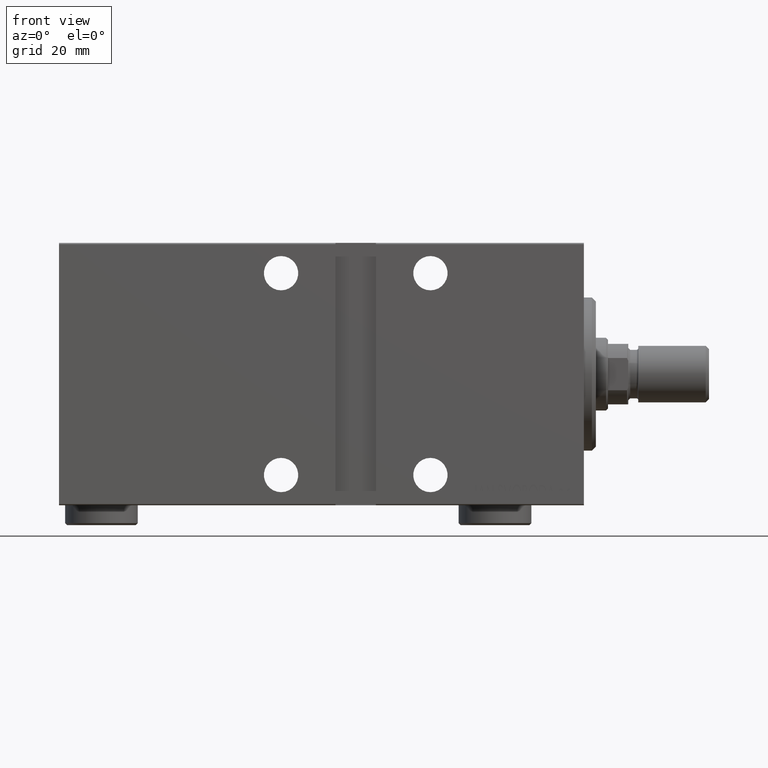
[diagram: clean part render]
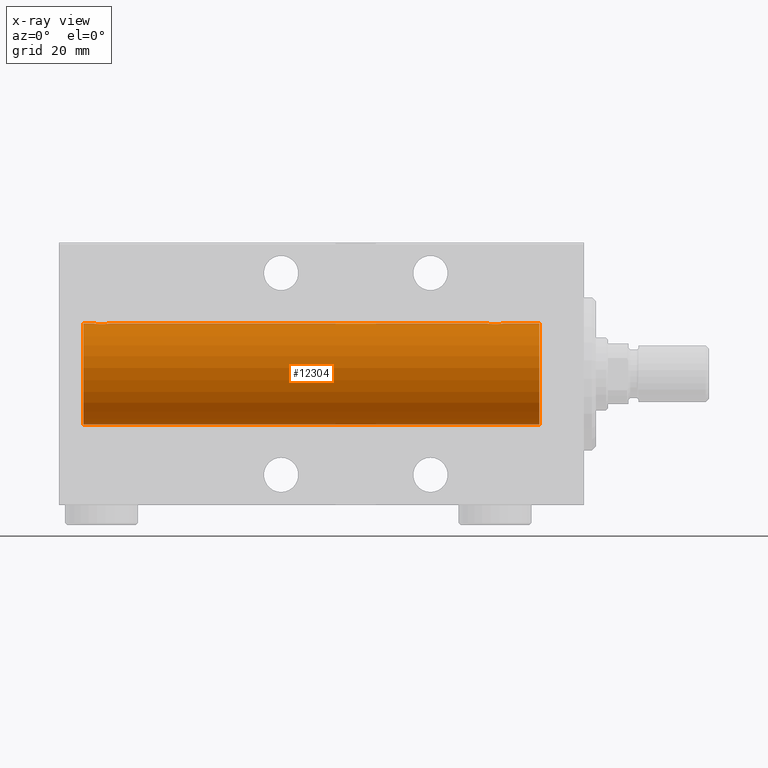
[diagram: x-ray — body ghosted, one internal face saturated and labeled with its STEP entity id]
A machine part, front view, then the same camera in x-ray: the body is ghosted and one INTERNAL B-rep face — a face not visible from any outside direction — is saturated and labeled: STEP entity #12304.
In plain terms, the highlighted cylindrical surface (partial cylindrical patch) has radius 12.5 mm, axis along (1, 0, -0).
Its self-contained STEP definition (entity closure, byte-faithful):
#515 = CARTESIAN_POINT ( 'NONE',  ( 20.78019209405420042, 1.590288205413970646, 12.39864157855464910 ) ) ;
#553 = CYLINDRICAL_SURFACE ( 'NONE', #44338, 12.50000000000000000 ) ;
#933 = CARTESIAN_POINT ( 'NONE',  ( 117.9100859131937398, 1.220297236145715170, 12.44076681548080465 ) ) ;
#1389 = CARTESIAN_POINT ( 'NONE',  ( 121.0903668000940456, 1.219754986802274344, 12.44082361696003680 ) ) ;
#1577 = VERTEX_POINT ( 'NONE', #27694 ) ;
#1908 = DIRECTION ( 'NONE',  ( 0.000000000000000000, 0.000000000000000000, 1.000000000000000000 ) ) ;
#2254 = CARTESIAN_POINT ( 'NONE',  ( 124.0000000000000000, 0.000000000000000000, 12.50000000000000000 ) ) ;
#2642 = EDGE_CURVE ( 'NONE', #40242, #30309, #25037, .T. ) ;
#2752 = CARTESIAN_POINT ( 'NONE',  ( 121.4869879148365044, 0.2624928479599939468, 12.49789934882883458 ) ) ;
#3650 = CARTESIAN_POINT ( 'NONE',  ( 23.73553255438137555, 1.002494658017160090, 12.46021263690097491 ) ) ;
#3837 = CARTESIAN_POINT ( 'NONE',  ( 121.2969921162862050, 0.8876934327478118725, 12.46903010196600015 ) ) ;
#3847 = VERTEX_POINT ( 'NONE', #8539 ) ;
#3864 = CARTESIAN_POINT ( 'NONE',  ( 20.26529257602388867, 1.003863686549170353, 12.46009879577771429 ) ) ;
#4299 = CARTESIAN_POINT ( 'NONE',  ( 120.0256358717048641, 1.947190906025038748, 12.34781876294798764 ) ) ;
#4327 = CARTESIAN_POINT ( 'NONE',  ( 22.52563587170489612, 1.947190906025044521, 12.34781876294798586 ) ) ;
#4544 = CARTESIAN_POINT ( 'NONE',  ( 20.01309615233744665, 0.2633501011236107914, 12.49788564268284041 ) ) ;
#4704 = EDGE_CURVE ( 'NONE', #18728, #3847, #26487, .T. ) ;
#5416 = VECTOR ( 'NONE', #5593, 1000.000000000000000 ) ;
#5593 = DIRECTION ( 'NONE',  ( -1.000000000000000000, -0.000000000000000000, -0.000000000000000000 ) ) ;
#7003 = CARTESIAN_POINT ( 'NONE',  ( 124.0000000000000000, 0.000000000000000000, 12.50000000000000000 ) ) ;
#7019 = CARTESIAN_POINT ( 'NONE',  ( 21.48062649148445047, 1.935814255713572019, 12.34922241902463469 ) ) ;
#7665 = CARTESIAN_POINT ( 'NONE',  ( 117.5000000000000142, -7.266355570171783942E-23, 12.50000000000000000 ) ) ;
#7895 = CARTESIAN_POINT ( 'NONE',  ( 121.3974772970180709, 0.6455696738844912685, 12.48390768591463384 ) ) ;
#8111 = CARTESIAN_POINT ( 'NONE',  ( 117.7652925760239100, 1.003863686549167467, 12.46009879577771429 ) ) ;
#8170 = DIRECTION ( 'NONE',  ( 0.000000000000000000, 0.000000000000000000, 1.000000000000000000 ) ) ;
#8366 = LINE ( 'NONE', #12188, #20502 ) ;
#8397 = CIRCLE ( 'NONE', #14117, 12.50000000000000000 ) ;
#8445 = EDGE_CURVE ( 'NONE', #1577, #9263, #8397, .T. ) ;
#8539 = CARTESIAN_POINT ( 'NONE',  ( 10.99999999999999645, 0.000000000000000000, 12.50000000000000000 ) ) ;
#8939 = ORIENTED_EDGE ( 'NONE', *, *, #30296, .T. ) ;
#9263 = VERTEX_POINT ( 'NONE', #34681 ) ;
#10392 = CARTESIAN_POINT ( 'NONE',  ( 20.20257508083844300, 0.8868029758979374400, 12.46909283808506252 ) ) ;
#10619 = ORIENTED_EDGE ( 'NONE', *, *, #4704, .T. ) ;
#10820 = CARTESIAN_POINT ( 'NONE',  ( 117.5130961523374538, 0.2633501011236107914, 12.49788564268283686 ) ) ;
#10848 = CARTESIAN_POINT ( 'NONE',  ( 23.79699211628617661, 0.8876934327478163134, 12.46903010196599837 ) ) ;
#11038 = CARTESIAN_POINT ( 'NONE',  ( 118.1789716649930284, 1.507394620545633446, 12.40913174964213539 ) ) ;
#11270 = CARTESIAN_POINT ( 'NONE',  ( 119.3700737063973634, 2.000049200055392440, 12.33895470450622867 ) ) ;
#11297 = CARTESIAN_POINT ( 'NONE',  ( 23.22966493873148863, 1.598680238462371284, 12.39873273758732175 ) ) ;
#12062 = CARTESIAN_POINT ( 'NONE',  ( 24.00000000000000000, -2.019790789754703983E-15, 12.50000000000000000 ) ) ;
#12091 = VECTOR ( 'NONE', #36639, 1000.000000000000000 ) ;
#12188 = CARTESIAN_POINT ( 'NONE',  ( 124.0000000000000000, 1.530808498934191521E-15, -12.50000000000000000 ) ) ;
#12304 = ADVANCED_FACE ( 'NONE', ( #14906 ), #553, .F. ) ;
#14117 = AXIS2_PLACEMENT_3D ( 'NONE', #39831, #32440, #1908 ) ;
#14203 = CARTESIAN_POINT ( 'NONE',  ( 23.93604351777362993, 0.5184196815546091575, 12.48990118705761709 ) ) ;
#14433 = CARTESIAN_POINT ( 'NONE',  ( 20.41008591319372201, 1.220297236145719610, 12.44076681548080465 ) ) ;
#14620 = CARTESIAN_POINT ( 'NONE',  ( 118.2801920940542004, 1.590288205413970202, 12.39864157855464555 ) ) ;
#14657 = ORIENTED_EDGE ( 'NONE', *, *, #2642, .T. ) ;
#14681 = DIRECTION ( 'NONE',  ( -1.000000000000000000, -0.000000000000000000, -0.000000000000000000 ) ) ;
#14906 = FACE_OUTER_BOUND ( 'NONE', #41141, .T. ) ;
#16079 = CIRCLE ( 'NONE', #26843, 12.50000000000000000 ) ;
#16154 = EDGE_CURVE ( 'NONE', #1577, #40242, #37666, .T. ) ;
#17337 = CARTESIAN_POINT ( 'NONE',  ( 24.00000000000000000, -2.019790789754703983E-15, 12.50000000000000000 ) ) ;
#18194 = CARTESIAN_POINT ( 'NONE',  ( 121.4360435177736406, 0.5184196815546076031, 12.48990118705761532 ) ) ;
#18423 = CARTESIAN_POINT ( 'NONE',  ( 117.6022696860634227, 0.6448065707252969014, 12.48394649977301718 ) ) ;
#18681 = DIRECTION ( 'NONE',  ( -1.000000000000000000, -0.000000000000000000, -0.000000000000000000 ) ) ;
#18728 = VERTEX_POINT ( 'NONE', #33923 ) ;
#20502 = VECTOR ( 'NONE', #18681, 1000.000000000000000 ) ;
#20698 = CARTESIAN_POINT ( 'NONE',  ( 20.49266449635678100, 1.321095788880536137, 12.43034574091278266 ) ) ;
#20870 = DIRECTION ( 'NONE',  ( -1.000000000000000000, 0.000000000000000000, 0.000000000000000000 ) ) ;
#21008 = EDGE_CURVE ( 'NONE', #3847, #44226, #16079, .T. ) ;
#21113 = CARTESIAN_POINT ( 'NONE',  ( 118.4966418570081998, 1.734998657226759944, 12.37922086519035680 ) ) ;
#21321 = CARTESIAN_POINT ( 'NONE',  ( 10.99999999999999645, 0.000000000000000000, 0.000000000000000000 ) ) ;
#21539 = ORIENTED_EDGE ( 'NONE', *, *, #30366, .F. ) ;
#21576 = CARTESIAN_POINT ( 'NONE',  ( 121.2355325543813649, 1.002494658017152096, 12.46021263690097136 ) ) ;
#21795 = CARTESIAN_POINT ( 'NONE',  ( 117.9926644963568236, 1.321095788880531696, 12.43034574091278266 ) ) ;
#23176 = CARTESIAN_POINT ( 'NONE',  ( 121.5000000000000142, 3.243081337463046590E-15, 12.50000000000000000 ) ) ;
#23289 = ORIENTED_EDGE ( 'NONE', *, *, #21008, .T. ) ;
#24083 = CARTESIAN_POINT ( 'NONE',  ( 23.50601633672791380, 1.322451657002079450, 12.43019346654085133 ) ) ;
#24282 = CARTESIAN_POINT ( 'NONE',  ( 118.8558476622971085, 1.897967064543083060, 12.35517291625592051 ) ) ;
#24525 = CARTESIAN_POINT ( 'NONE',  ( 21.87007370639734205, 2.000049200055400433, 12.33895470450622867 ) ) ;
#24750 = CARTESIAN_POINT ( 'NONE',  ( 20.99664185700817853, 1.734998657226762830, 12.37922086519035680 ) ) ;
#24958 = CARTESIAN_POINT ( 'NONE',  ( 117.5000000000000142, 0.1306394121199357938, 12.50000000000000000 ) ) ;
#24998 = ORIENTED_EDGE ( 'NONE', *, *, #8445, .F. ) ;
#25037 = B_SPLINE_CURVE_WITH_KNOTS ( 'NONE', 3,
 ( #23176, #33515, #2752, #18194, #7895, #3837, #21576, #1389, #31918, #28318, #38416, #4299, #35282, #11270, #27876, #41562, #24282, #42233, #21113, #14620, #11038, #21795, #933, #8111, #35496, #18423, #34605, #10820, #24958, #7665 ),
 .UNSPECIFIED., .F., .F.,
 ( 4, 2, 2, 2, 2, 2, 2, 2, 2, 2, 2, 2, 2, 2, 4 ),
 ( 3.150899254398443723E-18, 0.0003914362731607623990, 0.0007828725463215216538, 0.001174308819482281071, 0.001565745092643040272, 0.002348617638964557372, 0.003131490185286075340, 0.003522926458446834757, 0.003914362731607594174, 0.004305799004768353158, 0.004697235277929112142, 0.005088671551089871993, 0.005480107824250631844, 0.005871544097411390828, 0.006262980370572149812 ),
 .UNSPECIFIED. ) ;
#25107 = ORIENTED_EDGE ( 'NONE', *, *, #27007, .T. ) ;
#25601 = DIRECTION ( 'NONE',  ( -1.000000000000000000, -0.000000000000000000, -0.000000000000000000 ) ) ;
#26487 = LINE ( 'NONE', #2254, #36976 ) ;
#26843 = AXIS2_PLACEMENT_3D ( 'NONE', #21321, #20870, #41755 ) ;
#27007 = EDGE_CURVE ( 'NONE', #30309, #43526, #37757, .T. ) ;
#27678 = CARTESIAN_POINT ( 'NONE',  ( 20.00000000000000000, 0.1306394121199368485, 12.50000000000000178 ) ) ;
#27694 = CARTESIAN_POINT ( 'NONE',  ( 124.0000000000000000, 0.000000000000000000, 12.50000000000000000 ) ) ;
#27876 = CARTESIAN_POINT ( 'NONE',  ( 119.2373053754540138, 1.986986967296530349, 12.34109209020652820 ) ) ;
#27904 = CARTESIAN_POINT ( 'NONE',  ( 23.00683120447498808, 1.747608771958142793, 12.37764291807175709 ) ) ;
#28318 = CARTESIAN_POINT ( 'NONE',  ( 120.7296649387315171, 1.598680238462358183, 12.39873273758732353 ) ) ;
#28344 = CARTESIAN_POINT ( 'NONE',  ( 23.99999999999999645, 0.1323736289504348906, 12.50000000000000000 ) ) ;
#29715 = CARTESIAN_POINT ( 'NONE',  ( 10.99999999999999645, 1.530808498934191521E-15, -12.50000000000000000 ) ) ;
#30063 = B_SPLINE_CURVE_WITH_KNOTS ( 'NONE', 3,
 ( #17337, #28344, #41133, #14203, #41590, #10848, #3650, #42035, #24083, #11297, #27904, #4327, #37774, #24525, #38215, #7019, #38442, #31729, #24750, #515, #35089, #20698, #14433, #3864, #10392, #31278, #31051, #4544, #27678, #34412 ),
 .UNSPECIFIED., .F., .F.,
 ( 4, 2, 2, 2, 2, 2, 2, 2, 2, 2, 2, 2, 2, 2, 4 ),
 ( 3.101773669235365923E-18, 0.0003914362731607605559, 0.0007828725463215181844, 0.001174308819482275650, 0.001565745092643033550, 0.002348617638964548265, 0.003131490185286063196, 0.003522926458446825216, 0.003914362731607588103, 0.004305799004768350556, 0.004697235277929112142, 0.005088671551089875462, 0.005480107824250637048, 0.005871544097411400369, 0.006262980370572162822 ),
 .UNSPECIFIED. ) ;
#30296 = EDGE_CURVE ( 'NONE', #43526, #18728, #30063, .T. ) ;
#30309 = VERTEX_POINT ( 'NONE', #35306 ) ;
#30366 = EDGE_CURVE ( 'NONE', #9263, #44226, #8366, .T. ) ;
#31051 = CARTESIAN_POINT ( 'NONE',  ( 20.06438225478150272, 0.5201193324741336665, 12.48983485452574982 ) ) ;
#31278 = CARTESIAN_POINT ( 'NONE',  ( 20.10226968606341202, 0.6448065707252997880, 12.48394649977302073 ) ) ;
#31729 = CARTESIAN_POINT ( 'NONE',  ( 21.11343686466983982, 1.797558627508994533, 12.37018026341338484 ) ) ;
#31764 = CARTESIAN_POINT ( 'NONE',  ( 124.0000000000000000, 0.000000000000000000, 0.000000000000000000 ) ) ;
#31918 = CARTESIAN_POINT ( 'NONE',  ( 121.0060163367279529, 1.322451657002065906, 12.43019346654085311 ) ) ;
#32440 = DIRECTION ( 'NONE',  ( -1.000000000000000000, 0.000000000000000000, 0.000000000000000000 ) ) ;
#33515 = CARTESIAN_POINT ( 'NONE',  ( 121.5000000000000142, 0.1323736289504353070, 12.50000000000000000 ) ) ;
#33923 = CARTESIAN_POINT ( 'NONE',  ( 19.99999999999999645, -7.265724481447607133E-23, 12.50000000000000000 ) ) ;
#34412 = CARTESIAN_POINT ( 'NONE',  ( 19.99999999999999645, -7.265724481447607133E-23, 12.50000000000000000 ) ) ;
#34605 = CARTESIAN_POINT ( 'NONE',  ( 117.5643822547815347, 0.5201193324741313351, 12.48983485452574982 ) ) ;
#34681 = CARTESIAN_POINT ( 'NONE',  ( 124.0000000000000000, 1.530808498934191521E-15, -12.50000000000000000 ) ) ;
#34751 = CARTESIAN_POINT ( 'NONE',  ( 124.0000000000000000, 0.000000000000000000, 12.50000000000000000 ) ) ;
#35089 = CARTESIAN_POINT ( 'NONE',  ( 20.67897166499301775, 1.507394620545638997, 12.40913174964213717 ) ) ;
#35282 = CARTESIAN_POINT ( 'NONE',  ( 119.7621180633162226, 1.999901172190670762, 12.33897869807161207 ) ) ;
#35306 = CARTESIAN_POINT ( 'NONE',  ( 117.5000000000000142, -7.266355570171783942E-23, 12.50000000000000000 ) ) ;
#35496 = CARTESIAN_POINT ( 'NONE',  ( 117.7025750808384714, 0.8868029758979328880, 12.46909283808506430 ) ) ;
#35868 = CARTESIAN_POINT ( 'NONE',  ( 121.5000000000000142, 3.243081337463046590E-15, 12.50000000000000000 ) ) ;
#36639 = DIRECTION ( 'NONE',  ( -1.000000000000000000, -0.000000000000000000, -0.000000000000000000 ) ) ;
#36976 = VECTOR ( 'NONE', #25601, 1000.000000000000000 ) ;
#37666 = LINE ( 'NONE', #34751, #12091 ) ;
#37757 = LINE ( 'NONE', #7003, #5416 ) ;
#37774 = CARTESIAN_POINT ( 'NONE',  ( 22.26211806331625098, 1.999901172190677201, 12.33897869807161563 ) ) ;
#38120 = ORIENTED_EDGE ( 'NONE', *, *, #16154, .T. ) ;
#38215 = CARTESIAN_POINT ( 'NONE',  ( 21.73730537545401731, 1.986986967296538120, 12.34109209020652642 ) ) ;
#38416 = CARTESIAN_POINT ( 'NONE',  ( 120.5068312044750058, 1.747608771958138130, 12.37764291807175887 ) ) ;
#38442 = CARTESIAN_POINT ( 'NONE',  ( 21.35584766229707654, 1.897967064543088389, 12.35517291625592406 ) ) ;
#39831 = CARTESIAN_POINT ( 'NONE',  ( 124.0000000000000000, 0.000000000000000000, 0.000000000000000000 ) ) ;
#40242 = VERTEX_POINT ( 'NONE', #35868 ) ;
#41133 = CARTESIAN_POINT ( 'NONE',  ( 23.98698791483651149, 0.2624928479599948905, 12.49789934882883458 ) ) ;
#41141 = EDGE_LOOP ( 'NONE', ( #21539, #24998, #38120, #14657, #25107, #8939, #10619, #23289 ) ) ;
#41562 = CARTESIAN_POINT ( 'NONE',  ( 118.9806264914844292, 1.935814255713564469, 12.34922241902463291 ) ) ;
#41590 = CARTESIAN_POINT ( 'NONE',  ( 23.89747729701804957, 0.6455696738844942661, 12.48390768591463207 ) ) ;
#41755 = DIRECTION ( 'NONE',  ( 0.000000000000000000, 0.000000000000000000, 1.000000000000000000 ) ) ;
#42035 = CARTESIAN_POINT ( 'NONE',  ( 23.59036680009405629, 1.219754986802283003, 12.44082361696003858 ) ) ;
#42233 = CARTESIAN_POINT ( 'NONE',  ( 118.6134368646698647, 1.797558627508991425, 12.37018026341338484 ) ) ;
#43526 = VERTEX_POINT ( 'NONE', #12062 ) ;
#44226 = VERTEX_POINT ( 'NONE', #29715 ) ;
#44338 = AXIS2_PLACEMENT_3D ( 'NONE', #31764, #14681, #8170 ) ;